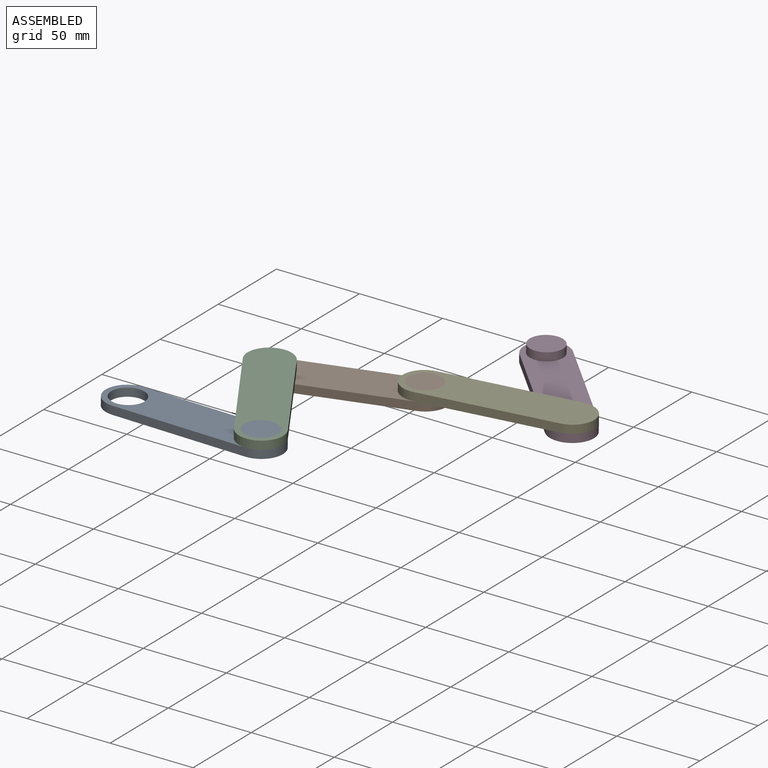
[diagram: assembled view]
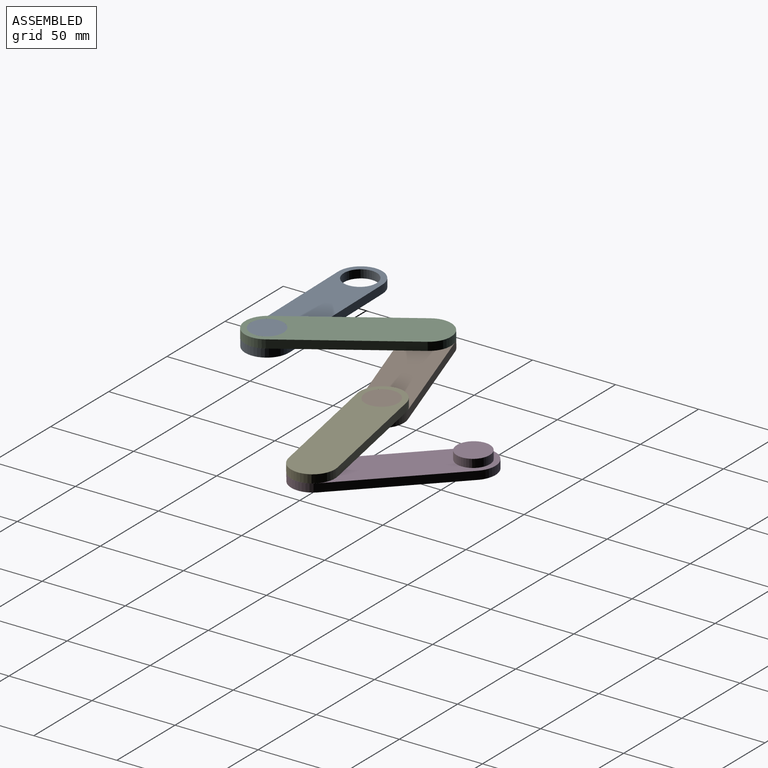
[diagram: assembled view, second angle]
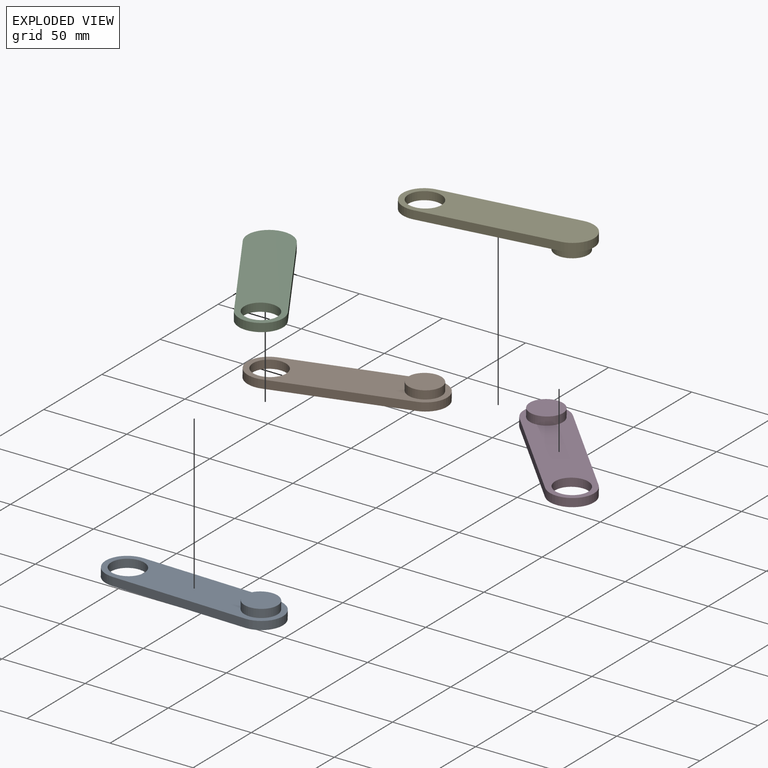
[diagram: exploded view]
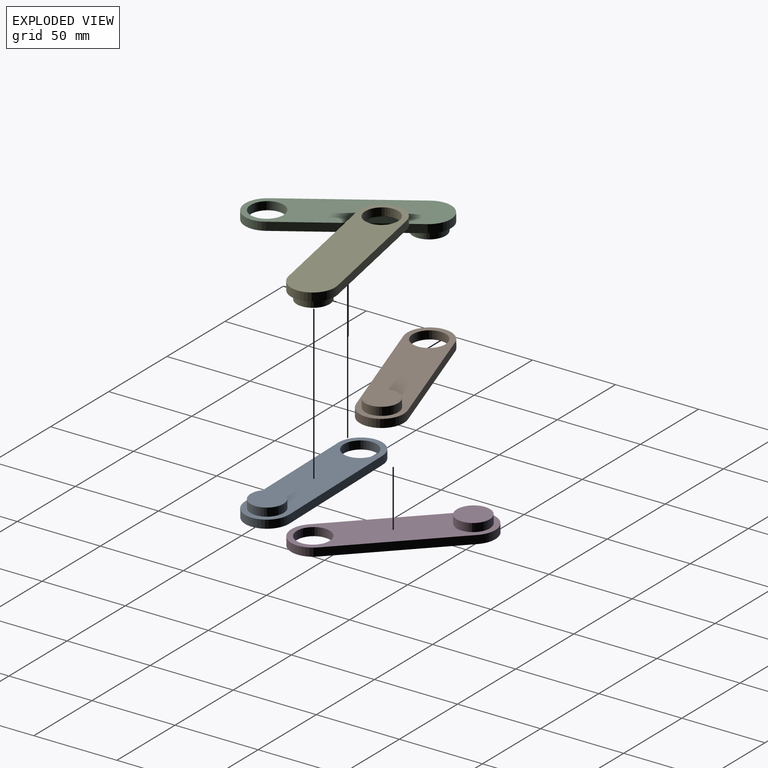
[diagram: exploded view, second angle]
ASSEMBLY  parts=5 mates=4
PART A: 9 faces, bbox 106.7x26.7x10 mm
  f0: plane 80x5mm, normal (0,-1,0), area 400mm2, adj f1,f3,f4,f5
  f1: cylinder r=13.33mm len=26.67mm, axis (0,0,-1), area 209.4mm2, adj f0,f2,f4,f5
  f2: plane 80x5mm, normal (0,1,0), area 400mm2, adj f1,f3,f4,f5
  f3: cylinder r=13.33mm len=26.67mm, axis (0,0,-1), area 209.4mm2, adj f0,f2,f4,f5
  f4: plane 106.67x26.67mm, normal (0,0,1), area 2063.5mm2, adj f0,f1,f2,f3,f6,f7
  f5: plane 106.67x26.67mm, normal (0,0,-1), area 2377.7mm2, adj f0,f1,f2,f3,f6
  f6: cylinder r=10mm len=20mm, axis (0,0,1), area 314.2mm2, adj f4,f5
  f7: cylinder r=10mm len=20mm, axis (0,0,-1), area 314.2mm2, adj f4,f8
  f8: plane 20x20mm, normal (0,0,1), area 314.2mm2, adj f7
PART B: same geometry as A
PART C: same geometry as A
PART D: same geometry as A
PART E: same geometry as A
PLACE A rot(axis=(-0.01,0,-1),180deg) t=(-306.91,-96.34,22.19)mm fixed
PLACE B rot(axis=(-0.01,0,-1),162deg) t=(-271.14,-16.03,21.58)mm
PLACE C rot(axis=(0.87,-0.49,-0.01),179.5deg) t=(-287.87,-62.37,31.87)mm
PLACE D rot(axis=(-0.01,0.02,-1),45.9deg) t=(-182.14,38.94,20.07)mm
PLACE E rot(axis=(0.09,-1,0),179deg) t=(-193.55,3.28,30.26)mm
MATE revolute E.f3 <-> D.f1  axis (-0.02,0,-1) through (-154.33,10.2,19.59)mm
MATE revolute C.f3 <-> B.f1  axis (-0.02,0,-1) through (-309.17,-28.41,22.23)mm
MATE revolute A.f3 <-> C.f1  axis (0.02,0,1) through (-266.75,-96.34,31.51)mm
MATE revolute B.f3 <-> E.f1  axis (0.02,0,1) through (-232.94,-3.65,30.93)mm
